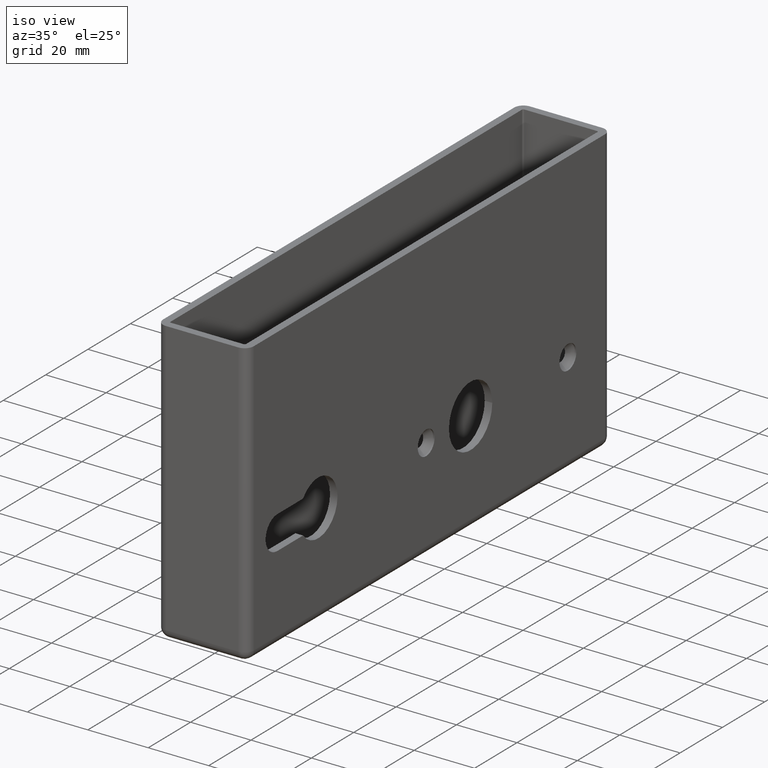
[diagram: clean part render]
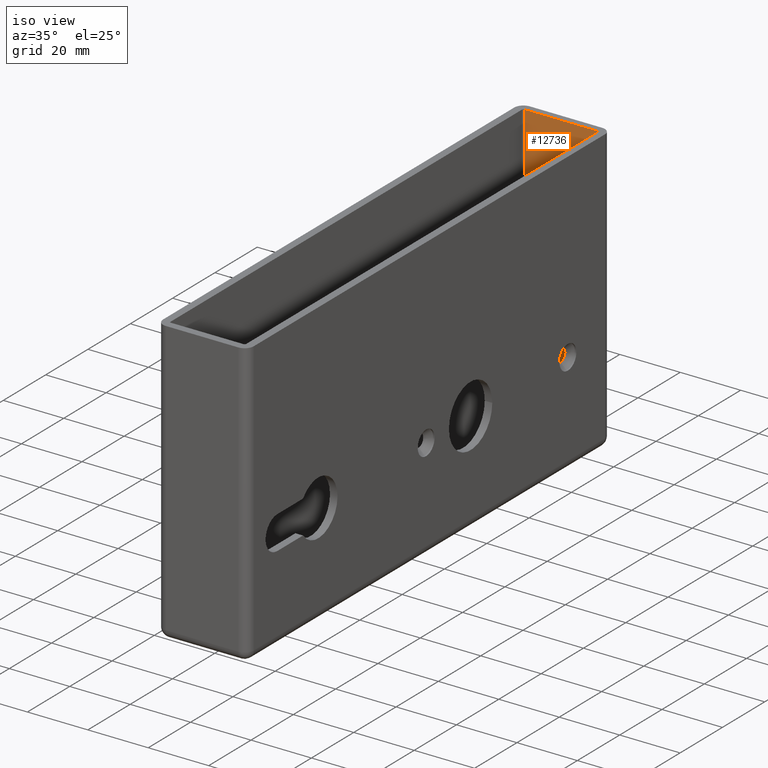
[diagram: same view with one face highlighted and labeled with its STEP entity id]
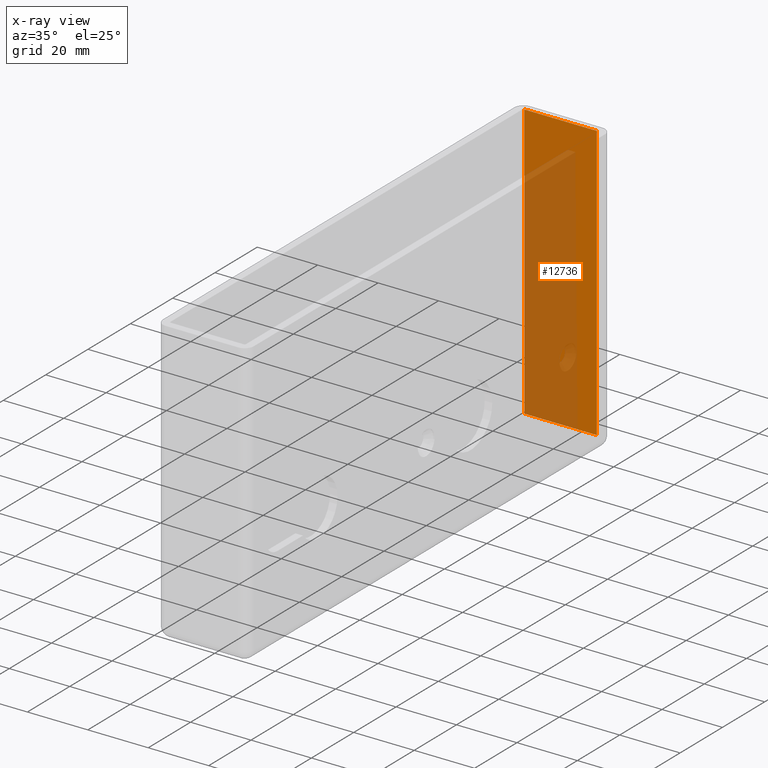
[diagram: x-ray of the same camera — body ghosted, the highlighted face saturated]
A machine part, iso view. The second image highlights one B-rep face of the part: STEP entity #12736.
The next image is the same camera in x-ray: the body ghosted, the highlighted face saturated — about 61% of this face is hidden behind the body in this view.
In plain terms, the highlighted planar face has unit normal (0, -1, 0).
Its self-contained STEP definition (entity closure, byte-faithful):
#38 = EDGE_CURVE ( 'NONE', #7161, #6505, #11352, .T. ) ;
#129 = DIRECTION ( 'NONE',  ( -0.000000000000000000, 0.000000000000000000, 1.000000000000000000 ) ) ;
#234 = VERTEX_POINT ( 'NONE', #6550 ) ;
#791 = ORIENTED_EDGE ( 'NONE', *, *, #4238, .F. ) ;
#797 = PLANE ( 'NONE',  #2314 ) ;
#936 = DIRECTION ( 'NONE',  ( 0.000000000000000000, -1.000000000000000000, 0.000000000000000000 ) ) ;
#1195 = CARTESIAN_POINT ( 'NONE',  ( -12.00000000000000355, 83.49999999999998579, 47.00000000000000000 ) ) ;
#1553 = CARTESIAN_POINT ( 'NONE',  ( 11.99999999999998401, 83.49999999999998579, 47.00000000000000000 ) ) ;
#1896 = ORIENTED_EDGE ( 'NONE', *, *, #38, .T. ) ;
#1965 = CARTESIAN_POINT ( 'NONE',  ( 11.99999999999998401, 83.49999999999998579, 47.00000000000000000 ) ) ;
#2314 = AXIS2_PLACEMENT_3D ( 'NONE', #3928, #936, #3878 ) ;
#3061 = FACE_OUTER_BOUND ( 'NONE', #4167, .T. ) ;
#3878 = DIRECTION ( 'NONE',  ( 0.000000000000000000, -0.000000000000000000, -1.000000000000000000 ) ) ;
#3928 = CARTESIAN_POINT ( 'NONE',  ( -15.00000000000000533, 83.49999999999998579, 47.00000000000000000 ) ) ;
#4028 = LINE ( 'NONE', #1965, #10201 ) ;
#4167 = EDGE_LOOP ( 'NONE', ( #11218, #4942, #1896, #791 ) ) ;
#4238 = EDGE_CURVE ( 'NONE', #234, #6505, #8786, .T. ) ;
#4242 = DIRECTION ( 'NONE',  ( -1.000000000000000000, -0.000000000000000000, -0.000000000000000000 ) ) ;
#4863 = DIRECTION ( 'NONE',  ( -1.000000000000000000, 0.000000000000000000, 0.000000000000000000 ) ) ;
#4942 = ORIENTED_EDGE ( 'NONE', *, *, #9302, .F. ) ;
#6202 = LINE ( 'NONE', #7268, #6817 ) ;
#6505 = VERTEX_POINT ( 'NONE', #10935 ) ;
#6550 = CARTESIAN_POINT ( 'NONE',  ( -12.00000000000000355, 83.49999999999998579, -44.00000000000000000 ) ) ;
#6817 = VECTOR ( 'NONE', #4242, 1000.000000000000000 ) ;
#7161 = VERTEX_POINT ( 'NONE', #1553 ) ;
#7268 = CARTESIAN_POINT ( 'NONE',  ( -15.00000000000000533, 83.49999999999998579, -44.00000000000000000 ) ) ;
#7282 = VECTOR ( 'NONE', #4863, 1000.000000000000000 ) ;
#8786 = LINE ( 'NONE', #1195, #9900 ) ;
#8980 = DIRECTION ( 'NONE',  ( 0.000000000000000000, -0.000000000000000000, -1.000000000000000000 ) ) ;
#9302 = EDGE_CURVE ( 'NONE', #7161, #9343, #4028, .T. ) ;
#9343 = VERTEX_POINT ( 'NONE', #10199 ) ;
#9900 = VECTOR ( 'NONE', #129, 1000.000000000000000 ) ;
#10199 = CARTESIAN_POINT ( 'NONE',  ( 11.99999999999999112, 83.49999999999998579, -44.00000000000000000 ) ) ;
#10201 = VECTOR ( 'NONE', #8980, 1000.000000000000000 ) ;
#10935 = CARTESIAN_POINT ( 'NONE',  ( -12.00000000000000355, 83.49999999999998579, 47.00000000000000000 ) ) ;
#11218 = ORIENTED_EDGE ( 'NONE', *, *, #12378, .F. ) ;
#11352 = LINE ( 'NONE', #12980, #7282 ) ;
#12378 = EDGE_CURVE ( 'NONE', #9343, #234, #6202, .T. ) ;
#12736 = ADVANCED_FACE ( 'NONE', ( #3061 ), #797, .T. ) ;
#12980 = CARTESIAN_POINT ( 'NONE',  ( -15.00000000000000533, 83.49999999999998579, 47.00000000000000000 ) ) ;